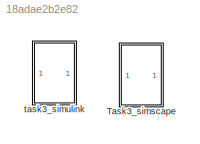
MODEL slx_18adae2b2e82
KIND model
CONFIG AbsTol = auto
CONFIG EnableMultiTasking = off
CONFIG FixedStep = auto
CONFIG MaxStep = auto
CONFIG MinStep = auto
CONFIG RelTol = 1e-3
CONFIG SampleTimeConstraint = Unconstrained
CONFIG SolverName = VariableStepAuto
CONFIG StartTime = 0.0
CONFIG StopTime = 10
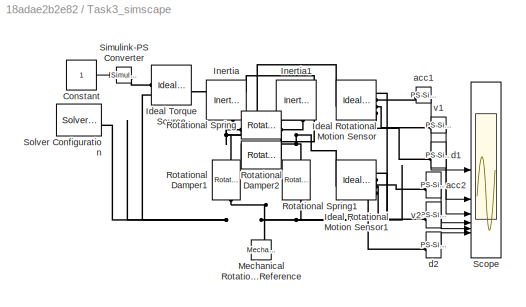
BLOCK [SubSystem] Task3_simscape
BLOCK [Constant] Task3_simscape/Constant
BLOCK [Reference] Task3_simscape/Ideal Rotational Motion Sensor  REF=fl_lib/Mechanical/Mechanical Sensors/Ideal Rotational
Motion Sensor
  SourceBlock = fl_lib/Mechanical/Mechanical Sensors/Ideal Rotational\nMotion Sensor
  SourceType = Ideal Rotational\nMotion Sensor
BLOCK [Reference] Task3_simscape/Ideal Rotational Motion Sensor1  REF=fl_lib/Mechanical/Mechanical Sensors/Ideal Rotational
Motion Sensor
  SourceBlock = fl_lib/Mechanical/Mechanical Sensors/Ideal Rotational\nMotion Sensor
  SourceType = Ideal Rotational\nMotion Sensor
BLOCK [Reference] Task3_simscape/Ideal Torque Source  REF=fl_lib/Mechanical/Mechanical Sources/Ideal Torque Source
  SourceBlock = fl_lib/Mechanical/Mechanical Sources/Ideal Torque Source
  SourceType = Ideal Torque Source
BLOCK [Reference] Task3_simscape/Inertia  REF=fl_lib/Mechanical/Rotational Elements/Inertia
  NameLocation = left
  SourceBlock = fl_lib/Mechanical/Rotational Elements/Inertia
  SourceType = Inertia
BLOCK [Reference] Task3_simscape/Inertia1  REF=fl_lib/Mechanical/Rotational Elements/Inertia
  NameLocation = left
  SourceBlock = fl_lib/Mechanical/Rotational Elements/Inertia
  SourceType = Inertia
BLOCK [Reference] Task3_simscape/Mechanical Rotational Reference  REF=fl_lib/Mechanical/Rotational Elements/Mechanical
Rotational Reference
  NameLocation = right
  SourceBlock = fl_lib/Mechanical/Rotational Elements/Mechanical\nRotational Reference
  SourceType = Mechanical\nRotational Reference
BLOCK [Reference] Task3_simscape/Rotational Damper1  REF=fl_lib/Mechanical/Rotational Elements/Rotational Damper
  NameLocation = left
  SourceBlock = fl_lib/Mechanical/Rotational Elements/Rotational Damper
  SourceType = Rotational Damper
BLOCK [Reference] Task3_simscape/Rotational Damper2  REF=fl_lib/Mechanical/Rotational Elements/Rotational Damper
  NameLocation = top
  SourceBlock = fl_lib/Mechanical/Rotational Elements/Rotational Damper
  SourceType = Rotational Damper
BLOCK [Reference] Task3_simscape/Rotational Spring  REF=fl_lib/Mechanical/Rotational Elements/Rotational Spring
  SourceBlock = fl_lib/Mechanical/Rotational Elements/Rotational Spring
  SourceType = Rotational Spring
BLOCK [Reference] Task3_simscape/Rotational Spring1  REF=fl_lib/Mechanical/Rotational Elements/Rotational Spring
  NameLocation = left
  SourceBlock = fl_lib/Mechanical/Rotational Elements/Rotational Spring
  SourceType = Rotational Spring
BLOCK [Scope] Task3_simscape/Scope
  Floating = off
  NumInputPorts = 6
  ScopeSpecificationString = Simulink.scopes.TimeScopeBlockCfg('CurrentConfiguration', extmgr.ConfigurationSet(extmgr.Configuration('Core','General UI',true),extmgr.Configuration('Core','Source UI',true),extmgr.Configuration('Sources','WiredSimulink',true,'DataLoggingVariableName','ScopeData1'),extmgr.Configuration('Visuals','Time Domain',true,'SerializedDisplays',{struct('MinYLimReal','-0.07682','MaxYLimReal','0.11142','YLab...<+5340ch>
BLOCK [Reference] Task3_simscape/Simulink-PS Converter  REF=nesl_utility/Simulink-PS
Converter
  SourceBlock = nesl_utility/Simulink-PS\nConverter
  SourceType = Simulink-PS\nConverter
BLOCK [Reference] Task3_simscape/Solver Configuration  REF=nesl_utility/Solver
Configuration
  SourceBlock = nesl_utility/Solver\nConfiguration
  SourceType = Solver\nConfiguration
BLOCK [Reference] Task3_simscape/acc1  REF=nesl_utility/PS-Simulink
Converter
  SourceBlock = nesl_utility/PS-Simulink\nConverter
  SourceType = PS-Simulink\nConverter
BLOCK [Reference] Task3_simscape/acc2  REF=nesl_utility/PS-Simulink
Converter
  SourceBlock = nesl_utility/PS-Simulink\nConverter
  SourceType = PS-Simulink\nConverter
BLOCK [Reference] Task3_simscape/d1  REF=nesl_utility/PS-Simulink
Converter
  SourceBlock = nesl_utility/PS-Simulink\nConverter
  SourceType = PS-Simulink\nConverter
BLOCK [Reference] Task3_simscape/d2  REF=nesl_utility/PS-Simulink
Converter
  SourceBlock = nesl_utility/PS-Simulink\nConverter
  SourceType = PS-Simulink\nConverter
BLOCK [Reference] Task3_simscape/v1  REF=nesl_utility/PS-Simulink
Converter
  SourceBlock = nesl_utility/PS-Simulink\nConverter
  SourceType = PS-Simulink\nConverter
BLOCK [Reference] Task3_simscape/v2  REF=nesl_utility/PS-Simulink
Converter
  SourceBlock = nesl_utility/PS-Simulink\nConverter
  SourceType = PS-Simulink\nConverter
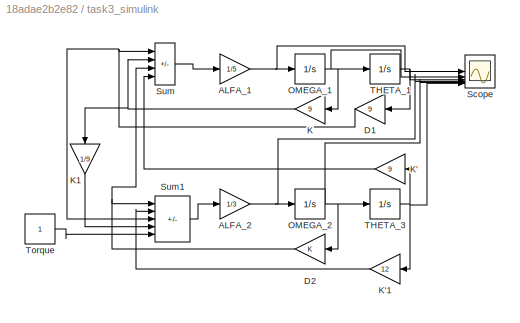
BLOCK [SubSystem] task3_simulink
  Commented = on
BLOCK [Gain] task3_simulink/ALFA_1
  Gain = 1/5
BLOCK [Gain] task3_simulink/ALFA_2
  Gain = 1/3
BLOCK [Gain] task3_simulink/D1
  Gain = 9
BLOCK [Gain] task3_simulink/D2
BLOCK [Gain] task3_simulink/K
  Gain = 9
BLOCK [Gain] task3_simulink/K'
  Gain = 9
BLOCK [Gain] task3_simulink/K'1
  Gain = 12
BLOCK [Gain] task3_simulink/K1
  Gain = 1/9
  NameLocation = right
BLOCK [Integrator] task3_simulink/OMEGA_1
BLOCK [Integrator] task3_simulink/OMEGA_2
BLOCK [Scope] task3_simulink/Scope
  Floating = off
  NumInputPorts = 6
  ScopeSpecificationString = Simulink.scopes.TimeScopeBlockCfg('CurrentConfiguration', extmgr.ConfigurationSet(extmgr.Configuration('Core','General UI',true),extmgr.Configuration('Core','Source UI',true),extmgr.Configuration('Sources','WiredSimulink',true),extmgr.Configuration('Visuals','Time Domain',true,'SerializedDisplays',{struct('MinYLimReal','-0.07696','MaxYLimReal','0.11163','YLabelReal','','MinYLimMag','0.00000','MaxY...<+5492ch>
BLOCK [Sum] task3_simulink/Sum
  IconShape = rectangular
  Inputs = --++
BLOCK [Sum] task3_simulink/Sum1
  IconShape = rectangular
  Inputs = --+++
BLOCK [Integrator] task3_simulink/THETA_1
BLOCK [Integrator] task3_simulink/THETA_3
BLOCK [Constant] task3_simulink/Torque
LINE Task3_simscape/Constant:1 -> Task3_simscape/Simulink-PS Converter:1
LINE Task3_simscape/acc1:1 -> Task3_simscape/Scope:1
LINE Task3_simscape/acc2:1 -> Task3_simscape/Scope:4
LINE Task3_simscape/d1:1 -> Task3_simscape/Scope:3
LINE Task3_simscape/d2:1 -> Task3_simscape/Scope:6
LINE Task3_simscape/v1:1 -> Task3_simscape/Scope:2
LINE Task3_simscape/v2:1 -> Task3_simscape/Scope:5
NET task3_simulink/ALFA_1:1 -> task3_simulink/OMEGA_1:1, task3_simulink/Scope:1
NET task3_simulink/ALFA_2:1 -> task3_simulink/OMEGA_2:1, task3_simulink/Scope:4
NET task3_simulink/D1:1 -> task3_simulink/Sum1:3, task3_simulink/Sum:1
NET task3_simulink/D2:1 -> task3_simulink/Sum1:1, task3_simulink/Sum:3
LINE task3_simulink/K'1:1 -> task3_simulink/Sum1:2
LINE task3_simulink/K':1 -> task3_simulink/Sum:4
LINE task3_simulink/K1:1 -> task3_simulink/Sum1:4
NET task3_simulink/K:1 -> task3_simulink/K1:1, task3_simulink/Sum:2
NET task3_simulink/OMEGA_1:1 -> task3_simulink/K:1, task3_simulink/Scope:2, task3_simulink/THETA_1:1
NET task3_simulink/OMEGA_2:1 -> task3_simulink/D2:1, task3_simulink/Scope:5, task3_simulink/THETA_3:1
LINE task3_simulink/Sum1:1 -> task3_simulink/ALFA_2:1
LINE task3_simulink/Sum:1 -> task3_simulink/ALFA_1:1
NET task3_simulink/THETA_1:1 -> task3_simulink/D1:1, task3_simulink/Scope:3
NET task3_simulink/THETA_3:1 -> task3_simulink/K'1:1, task3_simulink/K':1, task3_simulink/Scope:6
LINE task3_simulink/Torque:1 -> task3_simulink/Sum1:5
PNET net1: Task3_simscape/Ideal Rotational Motion Sensor1:LConn1 -- Task3_simscape/Ideal Torque Source:LConn1 -- Task3_simscape/Inertia1:LConn1 -- Task3_simscape/Rotational Damper2:LConn1 -- Task3_simscape/Rotational Spring1:LConn1 -- Task3_simscape/Rotational Spring:RConn1
PNET net2: Task3_simscape/Ideal Rotational Motion Sensor1:RConn1 -- Task3_simscape/Ideal Rotational Motion Sensor:RConn1 -- Task3_simscape/Ideal Torque Source:RConn2 -- Task3_simscape/Mechanical Rotational Reference:LConn1 -- Task3_simscape/Rotational Damper1:RConn1 -- Task3_simscape/Rotational Spring1:RConn1 -- Task3_simscape/Solver Configuration:RConn1
PLINE Task3_simscape/Ideal Rotational Motion Sensor1:RConn2 -- Task3_simscape/acc2:LConn1
PLINE Task3_simscape/Ideal Rotational Motion Sensor1:RConn3 -- Task3_simscape/v2:LConn1
PLINE Task3_simscape/Ideal Rotational Motion Sensor1:RConn4 -- Task3_simscape/d2:LConn1
PNET net3: Task3_simscape/Ideal Rotational Motion Sensor:LConn1 -- Task3_simscape/Inertia:LConn1 -- Task3_simscape/Rotational Damper1:LConn1 -- Task3_simscape/Rotational Damper2:RConn1 -- Task3_simscape/Rotational Spring:LConn1
PLINE Task3_simscape/Ideal Rotational Motion Sensor:RConn2 -- Task3_simscape/acc1:LConn1
PLINE Task3_simscape/Ideal Rotational Motion Sensor:RConn3 -- Task3_simscape/v1:LConn1
PLINE Task3_simscape/Ideal Rotational Motion Sensor:RConn4 -- Task3_simscape/d1:LConn1
PLINE Task3_simscape/Ideal Torque Source:RConn1 -- Task3_simscape/Simulink-PS Converter:RConn1
note: NET lines group one-source signal fan-out (src -> all destinations, sorted); 1:1 wires keep LINE; PNET lines group multi-terminal physical nets as a canonical sorted terminal list (undirected conserving connections); 2-terminal nets keep the pairwise PLINE form
